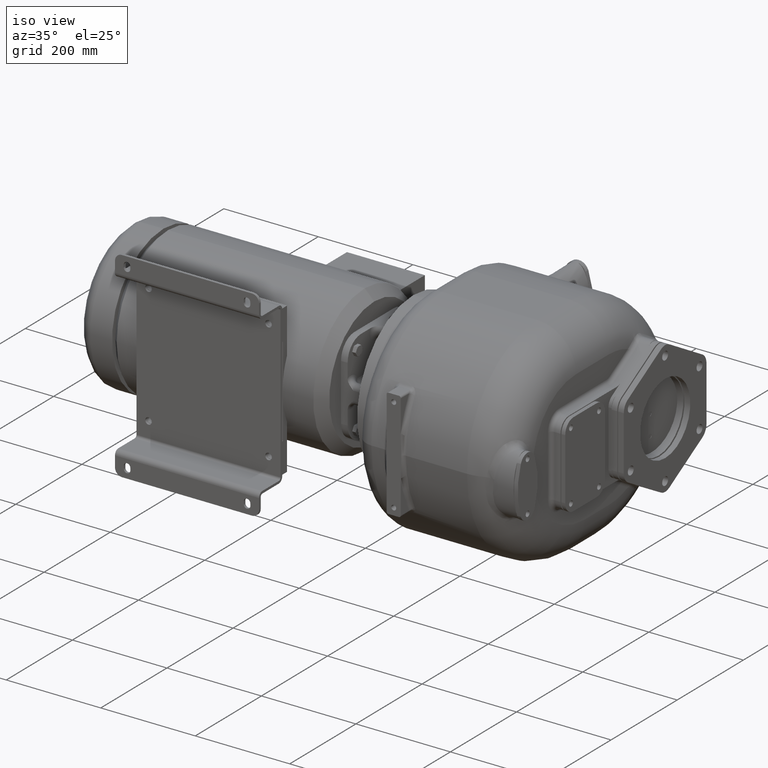
[diagram: clean part render]
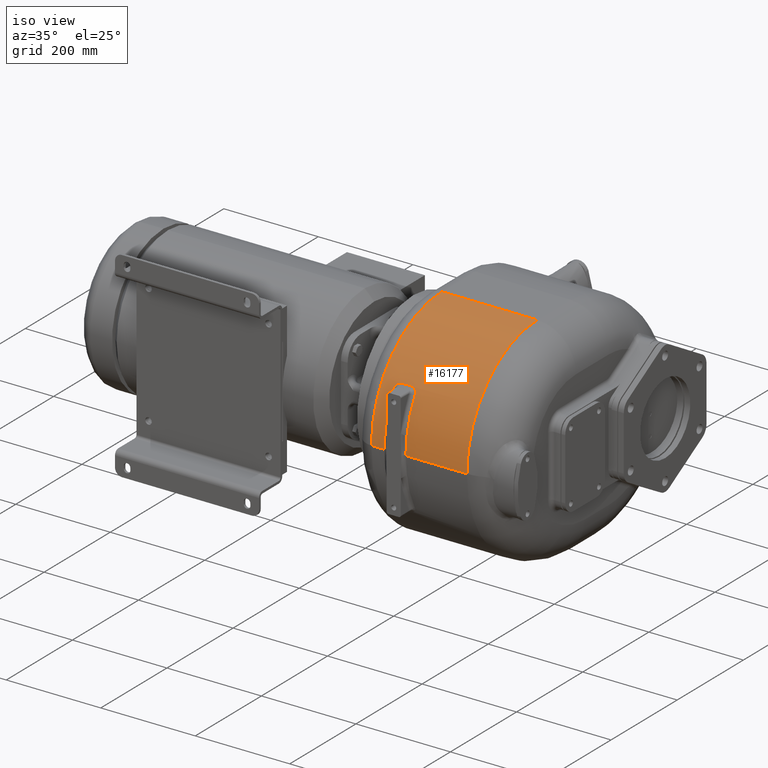
[diagram: same view with one face highlighted and labeled with its STEP entity id]
A machine part, iso view. The second image highlights one B-rep face of the part: STEP entity #16177.
In plain terms, the highlighted cylindrical surface (partial cylindrical patch) has radius 213 mm, axis along (-1, 0, 0).
Its self-contained STEP definition (entity closure, byte-faithful):
#1734=CARTESIAN_POINT('',(2.3E1,2.17E2,-1.3E1));
#1735=DIRECTION('',(-1.E0,0.E0,0.E0));
#1736=DIRECTION('',(0.E0,-1.E0,0.E0));
#1737=AXIS2_PLACEMENT_3D('',#1734,#1735,#1736);
#1739=CARTESIAN_POINT('',(2.299999999302E1,3.170961864258E1,9.205419324870E1));
#1740=CARTESIAN_POINT('',(2.299999860416E1,3.178585014162E1,9.218867273055E1));
#1741=CARTESIAN_POINT('',(2.299547715992E1,3.193847379989E1,9.245777951061E1));
#1742=CARTESIAN_POINT('',(2.297329970694E1,3.216925624424E1,9.286150211249E1));
#1743=CARTESIAN_POINT('',(2.293662099790E1,3.240075878107E1,9.326474006894E1));
#1744=CARTESIAN_POINT('',(2.288525522692E1,3.263281403008E1,9.366682532450E1));
#1745=CARTESIAN_POINT('',(2.281936914574E1,3.286499349912E1,9.406713158274E1));
#1746=CARTESIAN_POINT('',(2.273899539939E1,3.309692515496E1,9.446501426913E1));
#1747=CARTESIAN_POINT('',(2.264423955338E1,3.332821576533E1,9.485983941140E1));
#1748=CARTESIAN_POINT('',(2.253523936198E1,3.355847496328E1,9.525098118101E1));
#1749=CARTESIAN_POINT('',(2.241217978050E1,3.378731646091E1,9.563783504349E1));
#1750=CARTESIAN_POINT('',(2.227529269925E1,3.401436094341E1,9.601981881810E1));
#1751=CARTESIAN_POINT('',(2.212486706929E1,3.423923413872E1,9.639636958544E1));
#1752=CARTESIAN_POINT('',(2.196123304356E1,3.446157506834E1,9.676695623947E1));
#1753=CARTESIAN_POINT('',(2.178489379923E1,3.468094068850E1,9.713092078656E1));
#1754=CARTESIAN_POINT('',(2.159628688352E1,3.489686680810E1,9.748758133120E1));
#1755=CARTESIAN_POINT('',(2.139589898504E1,3.510885658826E1,9.783621322162E1));
#1756=CARTESIAN_POINT('',(2.118421106332E1,3.531653173766E1,9.817629700712E1));
#1757=CARTESIAN_POINT('',(2.096143957852E1,3.551980133758E1,9.850778731137E1));
#1758=CARTESIAN_POINT('',(2.072784269221E1,3.571853455254E1,9.883057252885E1));
#1759=CARTESIAN_POINT('',(2.048361417752E1,3.591266126927E1,9.914463847073E1));
#1760=CARTESIAN_POINT('',(2.022935159221E1,3.610181421469E1,9.944949081949E1));
#1761=CARTESIAN_POINT('',(1.996583984037E1,3.628561431359E1,9.974462192886E1));
#1762=CARTESIAN_POINT('',(1.969383614027E1,3.646368208052E1,1.000295278942E2));
#1763=CARTESIAN_POINT('',(1.941404340365E1,3.663563180920E1,1.003036992083E2));
#1764=CARTESIAN_POINT('',(1.912693632912E1,3.680130299077E1,1.005669870226E2));
#1765=CARTESIAN_POINT('',(1.883300463583E1,3.696053366242E1,1.008192379962E2));
#1766=CARTESIAN_POINT('',(1.853276751302E1,3.711318219244E1,1.010603292507E2));
#1767=CARTESIAN_POINT('',(1.822631344303E1,3.725933861593E1,1.012904995569E2));
#1768=CARTESIAN_POINT('',(1.791366989197E1,3.739910014064E1,1.015099920947E2));
#1769=CARTESIAN_POINT('',(1.759468579552E1,3.753262097580E1,1.017191326529E2));
#1770=CARTESIAN_POINT('',(1.726977549440E1,3.765978473394E1,1.019178173111E2));
#1771=CARTESIAN_POINT('',(1.694034611494E1,3.778011786802E1,1.021053839245E2));
#1772=CARTESIAN_POINT('',(1.660771264460E1,3.789327206261E1,1.022813672083E2));
#1773=CARTESIAN_POINT('',(1.627309132226E1,3.799901403910E1,1.024454799872E2));
#1774=CARTESIAN_POINT('',(1.593608000848E1,3.809763243228E1,1.025982400761E2));
#1775=CARTESIAN_POINT('',(1.559631551010E1,3.818931763223E1,1.027400045925E2));
#1776=CARTESIAN_POINT('',(1.525323389128E1,3.827425252037E1,1.028711123199E2));
#1777=CARTESIAN_POINT('',(1.490672404293E1,3.835241438849E1,1.029915791419E2));
#1778=CARTESIAN_POINT('',(1.455710384145E1,3.842384104964E1,1.031015101003E2));
#1779=CARTESIAN_POINT('',(1.420462773197E1,3.848859777073E1,1.032010477048E2));
#1780=CARTESIAN_POINT('',(1.384991716202E1,3.854661888310E1,1.032901289794E2));
#1781=CARTESIAN_POINT('',(1.349396653734E1,3.859778734830E1,1.033686084803E2));
#1782=CARTESIAN_POINT('',(1.313773551421E1,3.864201005672E1,1.034363745426E2));
#1783=CARTESIAN_POINT('',(1.278187049619E1,3.867924930034E1,1.034933943917E2));
#1784=CARTESIAN_POINT('',(1.242605611015E1,3.870953074346E1,1.035397360841E2));
#1785=CARTESIAN_POINT('',(1.207011405352E1,3.873282208955E1,1.035753447492E2));
#1786=CARTESIAN_POINT('',(1.171392706318E1,3.874941699689E1,1.036007716880E2));
#1787=CARTESIAN_POINT('',(1.135734750778E1,3.875921093598E1,1.036155367123E2));
#1788=CARTESIAN_POINT('',(1.111918083965E1,3.876179301074E1,1.036199936565E2));
#1789=CARTESIAN_POINT('',(1.099999996278E1,3.876181674286E1,1.036200072442E2));
#1791=DIRECTION('',(-9.999999999671E-1,6.786598514795E-6,-4.439528310163E-6));
#1792=VECTOR('',#1791,2.199999996350E1);
#1793=CARTESIAN_POINT('',(1.099999996278E1,3.876181674286E1,1.036200072442E2));
#1794=LINE('',#1793,#1792);
#1795=CARTESIAN_POINT('',(-1.099999999999E1,3.876196604802E1,1.036199095745E2));
#1796=CARTESIAN_POINT('',(-1.112063958021E1,3.876195815161E1,1.036199041698E2));
#1797=CARTESIAN_POINT('',(-1.136154472208E1,3.875957106961E1,1.036162458397E2));
#1798=CARTESIAN_POINT('',(-1.172180745517E1,3.874909958530E1,1.036002440260E2));
#1799=CARTESIAN_POINT('',(-1.208089443182E1,3.873188825818E1,1.035739282338E2));
#1800=CARTESIAN_POINT('',(-1.243876640571E1,3.870803344088E1,1.035374424293E2));
#1801=CARTESIAN_POINT('',(-1.279536991367E1,3.867757444830E1,1.034908314155E2));
#1802=CARTESIAN_POINT('',(-1.315062910367E1,3.864049128289E1,1.034340477009E2));
#1803=CARTESIAN_POINT('',(-1.350445180359E1,3.859671561533E1,1.033669652339E2));
#1804=CARTESIAN_POINT('',(-1.385662295232E1,3.854607829006E1,1.032892991232E2));
#1805=CARTESIAN_POINT('',(-1.420731723512E1,3.848850455662E1,1.032009042910E2));
#1806=CARTESIAN_POINT('',(-1.455684278689E1,3.842399645318E1,1.031017490534E2));
#1807=CARTESIAN_POINT('',(-1.490538472222E1,3.835248329034E1,1.029916854740E2));
#1808=CARTESIAN_POINT('',(-1.525315927174E1,3.827383248732E1,1.028704649467E2));
#1809=CARTESIAN_POINT('',(-1.559923837186E1,3.818813612333E1,1.027381799722E2));
#1810=CARTESIAN_POINT('',(-1.594255537139E1,3.809555604446E1,1.025950273424E2));
#1811=CARTESIAN_POINT('',(-1.628204727397E1,3.799628972791E1,1.024412561698E2));
#1812=CARTESIAN_POINT('',(-1.661671028072E1,3.789052578219E1,1.022770999409E2));
#1813=CARTESIAN_POINT('',(-1.694688808023E1,3.777811774913E1,1.021022684931E2));
#1814=CARTESIAN_POINT('',(-1.727280933689E1,3.765893824679E1,1.019164947875E2));
#1815=CARTESIAN_POINT('',(-1.759466051556E1,3.753282749615E1,1.017194547527E2));
#1816=CARTESIAN_POINT('',(-1.791251044574E1,3.739962522779E1,1.015108157620E2));
#1817=CARTESIAN_POINT('',(-1.822570975189E1,3.725945734339E1,1.012906872305E2));
#1818=CARTESIAN_POINT('',(-1.853363044314E1,3.711247720760E1,1.010592188541E2));
#1819=CARTESIAN_POINT('',(-1.883564306159E1,3.695885344722E1,1.008165816724E2));
#1820=CARTESIAN_POINT('',(-1.913104538999E1,3.679884949034E1,1.005630949471E2));
#1821=CARTESIAN_POINT('',(-1.941885064431E1,3.663283658092E1,1.002992494954E2));
#1822=CARTESIAN_POINT('',(-1.969802415455E1,3.646129428448E1,1.000257123783E2));
#1823=CARTESIAN_POINT('',(-1.996824636471E1,3.628437365825E1,9.974263082353E1));
#1824=CARTESIAN_POINT('',(-2.022988938411E1,3.610174953743E1,9.944938497499E1));
#1825=CARTESIAN_POINT('',(-2.048317275491E1,3.591309219547E1,9.914533411469E1));
#1826=CARTESIAN_POINT('',(-2.072748032625E1,3.571865591749E1,9.883077075858E1));
#1827=CARTESIAN_POINT('',(-2.096200330048E1,3.551891518582E1,9.850634776013E1));
#1828=CARTESIAN_POINT('',(-2.118606876206E1,3.531437151410E1,9.817276958705E1));
#1829=CARTESIAN_POINT('',(-2.139885418378E1,3.510563342023E1,9.783092534932E1));
#1830=CARTESIAN_POINT('',(-2.159951634311E1,3.489335457249E1,9.748179189715E1));
#1831=CARTESIAN_POINT('',(-2.178758711719E1,3.467800320810E1,9.712605573603E1));
#1832=CARTESIAN_POINT('',(-2.196313815864E1,3.445946005917E1,9.676343713636E1));
#1833=CARTESIAN_POINT('',(-2.212614779916E1,3.423762439599E1,9.639367969218E1));
#1834=CARTESIAN_POINT('',(-2.227632420031E1,3.401270952204E1,9.601704755786E1));
#1835=CARTESIAN_POINT('',(-2.241317111692E1,3.378531722897E1,9.563446457657E1));
#1836=CARTESIAN_POINT('',(-2.253632882175E1,3.355598528745E1,9.524676347042E1));
#1837=CARTESIAN_POINT('',(-2.264550832518E1,3.332528246959E1,9.485484526143E1));
#1838=CARTESIAN_POINT('',(-2.274036323992E1,3.309373893215E1,9.445956198656E1));
#1839=CARTESIAN_POINT('',(-2.282065568511E1,3.286192282317E1,9.406184900694E1));
#1840=CARTESIAN_POINT('',(-2.288631127378E1,3.263016173062E1,9.366224172811E1));
#1841=CARTESIAN_POINT('',(-2.293731172430E1,3.239872537789E1,9.326119673541E1));
#1842=CARTESIAN_POINT('',(-2.297363739282E1,3.216791947819E1,9.285919947671E1));
#1843=CARTESIAN_POINT('',(-2.299539509217E1,3.193793497504E1,9.245670635885E1));
#1844=CARTESIAN_POINT('',(-2.300002391578E1,3.178554438149E1,9.218840510001E1));
#1845=CARTESIAN_POINT('',(-2.299999999974E1,3.170946011016E1,9.205428307601E1));
#1847=CARTESIAN_POINT('',(-2.3E1,2.17E2,-1.3E1));
#1848=DIRECTION('',(1.E0,0.E0,0.E0));
#1849=DIRECTION('',(0.E0,-8.699087667474E-1,4.932126696833E-1));
#1850=AXIS2_PLACEMENT_3D('',#1847,#1848,#1849);
#1852=DIRECTION('',(9.999999992041E-1,1.908062513054E-10,3.989782963278E-5));
#1853=VECTOR('',#1852,2.700000002149E1);
#1854=CARTESIAN_POINT('',(-5.E1,4.E0,-1.300000000001E1));
#1855=LINE('',#1854,#1853);
#1856=CARTESIAN_POINT('',(-5.E1,2.17E2,-1.3E1));
#1857=DIRECTION('',(-1.E0,0.E0,0.E0));
#1858=DIRECTION('',(0.E0,-1.E0,0.E0));
#1859=AXIS2_PLACEMENT_3D('',#1856,#1857,#1858);
#1861=CARTESIAN_POINT('',(1.52E2,2.17E2,-1.3E1));
#1862=DIRECTION('',(1.E0,0.E0,0.E0));
#1863=DIRECTION('',(0.E0,0.E0,1.E0));
#1864=AXIS2_PLACEMENT_3D('',#1861,#1862,#1863);
#1866=DIRECTION('',(9.999999999845E-1,-1.776500049536E-11,-5.569583433951E-6));
#1867=VECTOR('',#1866,1.290000000020E2);
#1868=CARTESIAN_POINT('',(2.3E1,4.000000002292E0,-1.299928152342E1));
#1869=LINE('',#1868,#1867);
#1887=CARTESIAN_POINT('',(2.3E1,4.000000004847E0,-1.299856304685E1));
#2127=CARTESIAN_POINT('',(-2.3E1,4.000000009711E0,-1.299784551722E1));
#8456=DIRECTION('',(1.E0,2.116854546438E-12,0.E0));
#8457=VECTOR('',#8456,2.02E2);
#8458=CARTESIAN_POINT('',(-5.E1,2.17E2,2.E2));
#8459=LINE('',#8458,#8457);
#12513=CARTESIAN_POINT('',(-5.E1,2.17E2,2.E2));
#12514=CARTESIAN_POINT('',(1.52E2,2.170000000004E2,2.E2));
#12515=VERTEX_POINT('',#12513);
#12516=VERTEX_POINT('',#12514);
#12561=CARTESIAN_POINT('',(-5.E1,4.E0,-1.3E1));
#12562=VERTEX_POINT('',#12561);
#12573=CARTESIAN_POINT('',(1.52E2,4.E0,-1.3E1));
#12574=VERTEX_POINT('',#12573);
#12600=VERTEX_POINT('',#2127);
#12605=VERTEX_POINT('',#1887);
#12787=CARTESIAN_POINT('',(2.3E1,3.170943268281E1,9.205429864253E1));
#12788=VERTEX_POINT('',#12787);
#12789=VERTEX_POINT('',#1789);
#12791=CARTESIAN_POINT('',(-1.099999999999E1,3.876196604802E1,
1.036199095745E2));
#12792=VERTEX_POINT('',#12791);
#12795=VERTEX_POINT('',#1845);
#16151=CARTESIAN_POINT('',(-8.7E1,2.17E2,-1.3E1));
#16152=DIRECTION('',(-1.E0,0.E0,0.E0));
#16153=DIRECTION('',(0.E0,0.E0,1.E0));
#16154=AXIS2_PLACEMENT_3D('',#16151,#16152,#16153);
#16155=CYLINDRICAL_SURFACE('',#16154,2.13E2);
#16157=ORIENTED_EDGE('',*,*,#16156,.T.);
#16159=ORIENTED_EDGE('',*,*,#16158,.T.);
#16161=ORIENTED_EDGE('',*,*,#16160,.T.);
#16163=ORIENTED_EDGE('',*,*,#16162,.T.);
#16165=ORIENTED_EDGE('',*,*,#16164,.T.);
#16167=ORIENTED_EDGE('',*,*,#16166,.F.);
#16168=ORIENTED_EDGE('',*,*,#16142,.T.);
#16170=ORIENTED_EDGE('',*,*,#16169,.T.);
#16172=ORIENTED_EDGE('',*,*,#16171,.T.);
#16174=ORIENTED_EDGE('',*,*,#16173,.F.);
#16175=EDGE_LOOP('',(#16157,#16159,#16161,#16163,#16165,#16167,#16168,#16170,
#16172,#16174));
#16176=FACE_OUTER_BOUND('',#16175,.F.);
#16177=ADVANCED_FACE('',(#16176),#16155,.T.);
#1738=CIRCLE('',#1737,2.13E2);
#1790=B_SPLINE_CURVE_WITH_KNOTS('',3,(#1739,#1740,#1741,#1742,#1743,#1744,#1745,
#1746,#1747,#1748,#1749,#1750,#1751,#1752,#1753,#1754,#1755,#1756,#1757,#1758,
#1759,#1760,#1761,#1762,#1763,#1764,#1765,#1766,#1767,#1768,#1769,#1770,#1771,
#1772,#1773,#1774,#1775,#1776,#1777,#1778,#1779,#1780,#1781,#1782,#1783,#1784,
#1785,#1786,#1787,#1788,#1789),.UNSPECIFIED.,.F.,.F.,(4,1,1,1,1,1,1,1,1,1,1,1,1,
1,1,1,1,1,1,1,1,1,1,1,1,1,1,1,1,1,1,1,1,1,1,1,1,1,1,1,1,1,1,1,1,1,1,1,4),(0.E0,
2.083333333333E-2,4.166666666667E-2,6.25E-2,8.333333333333E-2,1.041666666667E-1,
1.25E-1,1.458333333333E-1,1.666666666667E-1,1.875E-1,2.083333333333E-1,
2.291666666667E-1,2.5E-1,2.708333333333E-1,2.916666666667E-1,3.125E-1,
3.333333333333E-1,3.541666666667E-1,3.75E-1,3.958333333333E-1,4.166666666667E-1,
4.375E-1,4.583333333333E-1,4.791666666667E-1,5.E-1,5.208333333333E-1,
5.416666666667E-1,5.625E-1,5.833333333333E-1,6.041666666667E-1,6.25E-1,
6.458333333333E-1,6.666666666667E-1,6.875E-1,7.083333333333E-1,
7.291666666667E-1,7.5E-1,7.708333333333E-1,7.916666666667E-1,8.125E-1,
8.333333333333E-1,8.541666666667E-1,8.75E-1,8.958333333333E-1,9.166666666667E-1,
9.375E-1,9.583333333333E-1,9.791666666667E-1,1.E0),.UNSPECIFIED.);
#1846=B_SPLINE_CURVE_WITH_KNOTS('',3,(#1795,#1796,#1797,#1798,#1799,#1800,#1801,
#1802,#1803,#1804,#1805,#1806,#1807,#1808,#1809,#1810,#1811,#1812,#1813,#1814,
#1815,#1816,#1817,#1818,#1819,#1820,#1821,#1822,#1823,#1824,#1825,#1826,#1827,
#1828,#1829,#1830,#1831,#1832,#1833,#1834,#1835,#1836,#1837,#1838,#1839,#1840,
#1841,#1842,#1843,#1844,#1845),.UNSPECIFIED.,.F.,.F.,(4,1,1,1,1,1,1,1,1,1,1,1,1,
1,1,1,1,1,1,1,1,1,1,1,1,1,1,1,1,1,1,1,1,1,1,1,1,1,1,1,1,1,1,1,1,1,1,1,4),(0.E0,
2.083333333333E-2,4.166666666667E-2,6.25E-2,8.333333333333E-2,1.041666666667E-1,
1.25E-1,1.458333333333E-1,1.666666666667E-1,1.875E-1,2.083333333333E-1,
2.291666666667E-1,2.5E-1,2.708333333333E-1,2.916666666667E-1,3.125E-1,
3.333333333333E-1,3.541666666667E-1,3.75E-1,3.958333333333E-1,4.166666666667E-1,
4.375E-1,4.583333333333E-1,4.791666666667E-1,5.E-1,5.208333333333E-1,
5.416666666667E-1,5.625E-1,5.833333333333E-1,6.041666666667E-1,6.25E-1,
6.458333333333E-1,6.666666666667E-1,6.875E-1,7.083333333333E-1,
7.291666666667E-1,7.5E-1,7.708333333333E-1,7.916666666667E-1,8.125E-1,
8.333333333333E-1,8.541666666667E-1,8.75E-1,8.958333333333E-1,9.166666666667E-1,
9.375E-1,9.583333333333E-1,9.791666666667E-1,1.E0),.UNSPECIFIED.);
#1851=CIRCLE('',#1850,2.13E2);
#1860=CIRCLE('',#1859,2.13E2);
#1865=CIRCLE('',#1864,2.13E2);
#16142=EDGE_CURVE('',#12562,#12515,#1860,.T.);
#16156=EDGE_CURVE('',#12605,#12788,#1738,.T.);
#16158=EDGE_CURVE('',#12788,#12789,#1790,.T.);
#16160=EDGE_CURVE('',#12789,#12792,#1794,.T.);
#16162=EDGE_CURVE('',#12792,#12795,#1846,.T.);
#16164=EDGE_CURVE('',#12795,#12600,#1851,.T.);
#16166=EDGE_CURVE('',#12562,#12600,#1855,.T.);
#16169=EDGE_CURVE('',#12515,#12516,#8459,.T.);
#16171=EDGE_CURVE('',#12516,#12574,#1865,.T.);
#16173=EDGE_CURVE('',#12605,#12574,#1869,.T.);